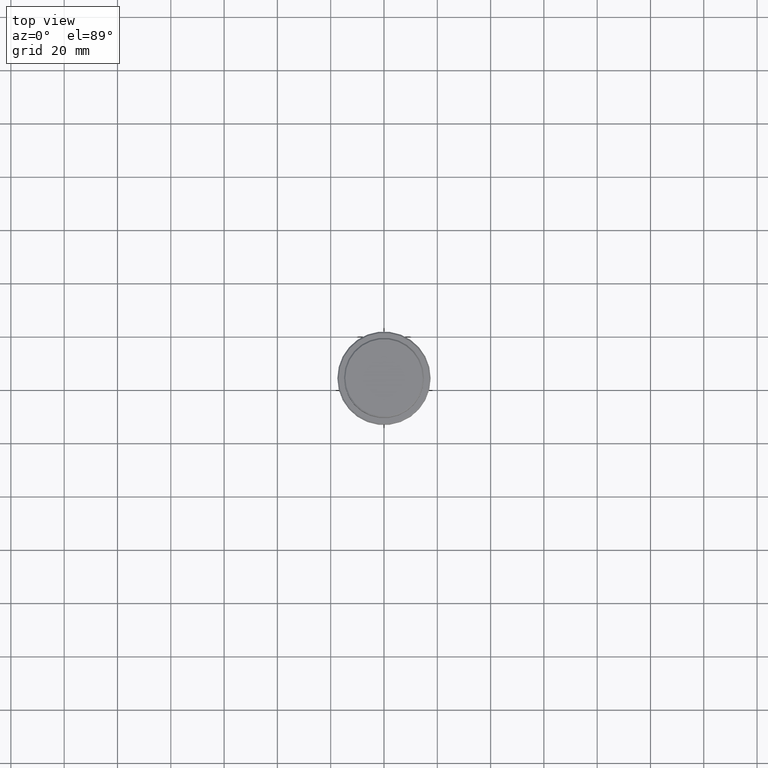
[diagram: clean part render]
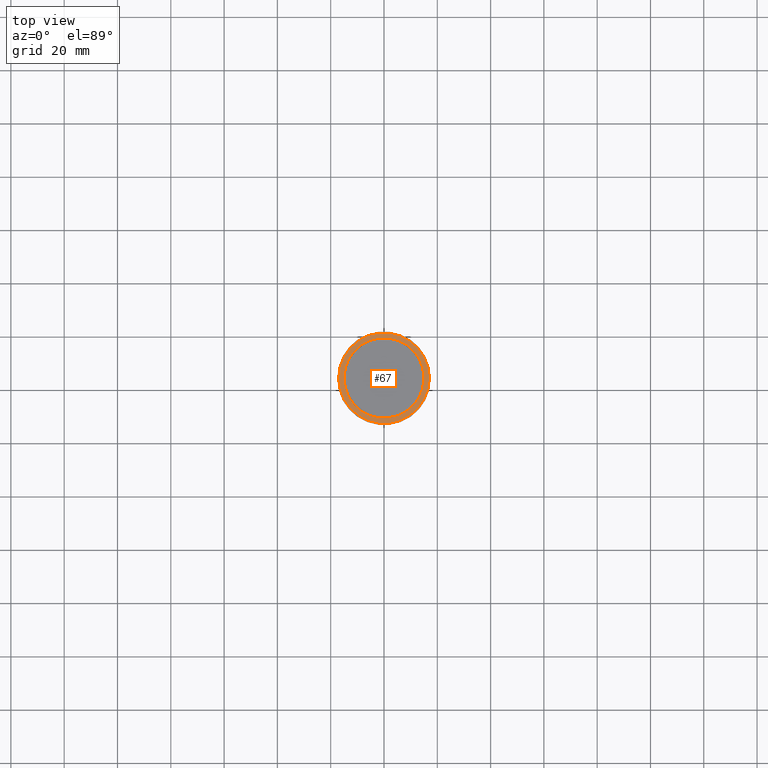
[diagram: same view with one face highlighted and labeled with its STEP entity id]
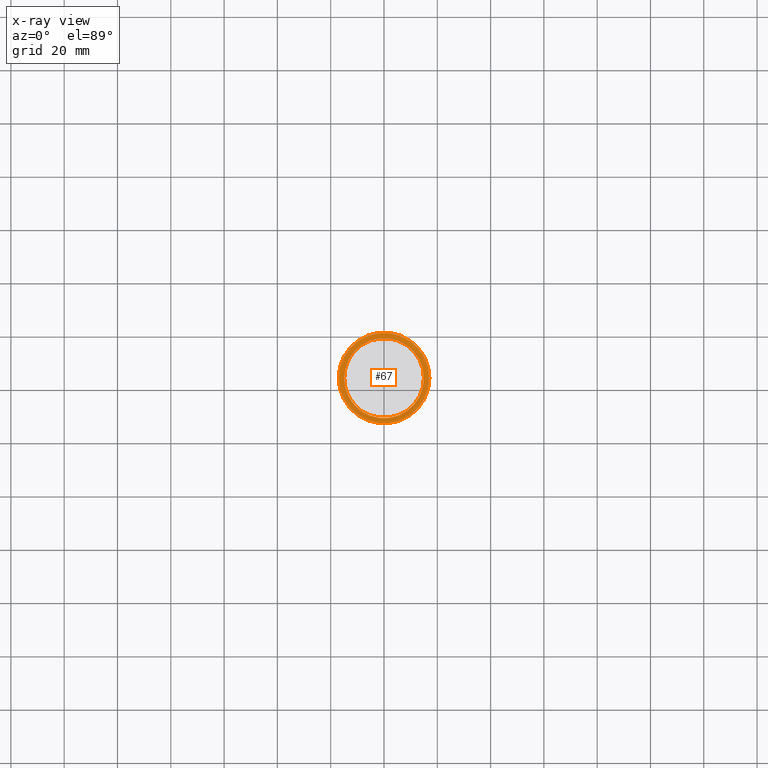
[diagram: x-ray of the same camera — body ghosted, the highlighted face saturated]
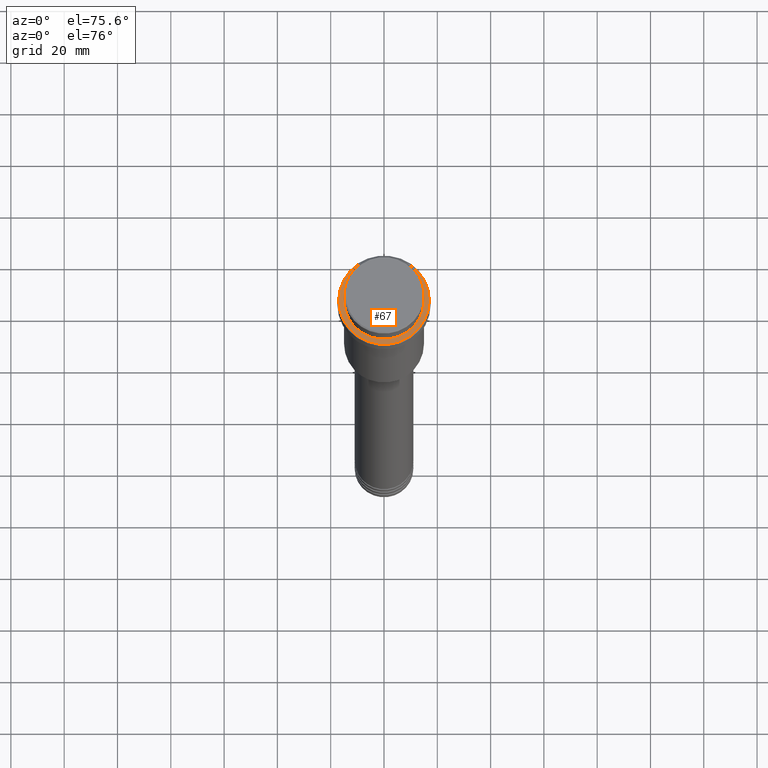
[diagram: same view with one face highlighted and labeled with its STEP entity id]
A machine part, top view. The second image highlights one B-rep face of the part: STEP entity #67.
The next image is the same camera in x-ray: the body ghosted, the highlighted face saturated — about 0% of this face is hidden behind the body in this view.
A second angle (auxiliary view) of the same face is appended — the face is thin or edge-on in the first view.
In plain terms, the highlighted planar face has unit normal (0, -0, 1).
Its self-contained STEP definition (entity closure, byte-faithful):
#18 = CARTESIAN_POINT ( 'NONE',  ( -16.99999999999996092, 0.000000000000000000, -9.000000000000001776 ) ) ;
#59 = AXIS2_PLACEMENT_3D ( 'NONE', #1248, #922, #719 ) ;
#67 = ADVANCED_FACE ( 'NONE', ( #504, #1357 ), #1254, .T. ) ;
#81 = AXIS2_PLACEMENT_3D ( 'NONE', #1269, #409, #1263 ) ;
#88 = CARTESIAN_POINT ( 'NONE',  ( 0.000000000000000000, 0.000000000000000000, -9.000000000000001776 ) ) ;
#126 = EDGE_CURVE ( 'NONE', #615, #812, #562, .T. ) ;
#144 = DIRECTION ( 'NONE',  ( -0.000000000000000000, -0.000000000000000000, 1.000000000000000000 ) ) ;
#251 = ORIENTED_EDGE ( 'NONE', *, *, #126, .T. ) ;
#294 = CARTESIAN_POINT ( 'NONE',  ( 0.000000000000000000, 14.49999999999999467, -9.000000000000001776 ) ) ;
#304 = CARTESIAN_POINT ( 'NONE',  ( 0.000000000000000000, 0.000000000000000000, -9.000000000000001776 ) ) ;
#312 = CIRCLE ( 'NONE', #81, 16.99999999999996092 ) ;
#409 = DIRECTION ( 'NONE',  ( -0.000000000000000000, -0.000000000000000000, 1.000000000000000000 ) ) ;
#419 = DIRECTION ( 'NONE',  ( 1.000000000000000000, 0.000000000000000000, 0.000000000000000000 ) ) ;
#504 = FACE_OUTER_BOUND ( 'NONE', #1058, .T. ) ;
#518 = CARTESIAN_POINT ( 'NONE',  ( 16.99999999999996092, 2.112515728529182095E-15, -9.000000000000001776 ) ) ;
#562 = CIRCLE ( 'NONE', #800, 16.99999999999996092 ) ;
#577 = CARTESIAN_POINT ( 'NONE',  ( 14.99999999999999467, 0.000000000000000000, -9.000000000000001776 ) ) ;
#615 = VERTEX_POINT ( 'NONE', #18 ) ;
#719 = DIRECTION ( 'NONE',  ( 1.000000000000000000, 0.000000000000000000, 0.000000000000000000 ) ) ;
#720 = EDGE_LOOP ( 'NONE', ( #889, #1048 ) ) ;
#769 = EDGE_CURVE ( 'NONE', #1375, #1266, #914, .T. ) ;
#800 = AXIS2_PLACEMENT_3D ( 'NONE', #304, #144, #1032 ) ;
#812 = VERTEX_POINT ( 'NONE', #518 ) ;
#840 = EDGE_CURVE ( 'NONE', #1266, #1375, #1203, .T. ) ;
#841 = DIRECTION ( 'NONE',  ( 1.000000000000000000, 0.000000000000000000, 0.000000000000000000 ) ) ;
#889 = ORIENTED_EDGE ( 'NONE', *, *, #769, .T. ) ;
#914 = CIRCLE ( 'NONE', #59, 14.99999999999999467 ) ;
#922 = DIRECTION ( 'NONE',  ( 0.000000000000000000, 0.000000000000000000, -1.000000000000000000 ) ) ;
#1032 = DIRECTION ( 'NONE',  ( 1.000000000000000000, 0.000000000000000000, 0.000000000000000000 ) ) ;
#1048 = ORIENTED_EDGE ( 'NONE', *, *, #840, .T. ) ;
#1058 = EDGE_LOOP ( 'NONE', ( #251, #1298 ) ) ;
#1060 = DIRECTION ( 'NONE',  ( 0.000000000000000000, 0.000000000000000000, -1.000000000000000000 ) ) ;
#1170 = EDGE_CURVE ( 'NONE', #812, #615, #312, .T. ) ;
#1203 = CIRCLE ( 'NONE', #1313, 14.99999999999999467 ) ;
#1248 = CARTESIAN_POINT ( 'NONE',  ( 0.000000000000000000, 0.000000000000000000, -9.000000000000001776 ) ) ;
#1250 = AXIS2_PLACEMENT_3D ( 'NONE', #294, #1262, #841 ) ;
#1254 = PLANE ( 'NONE',  #1250 ) ;
#1262 = DIRECTION ( 'NONE',  ( 0.000000000000000000, -0.000000000000000000, 1.000000000000000000 ) ) ;
#1263 = DIRECTION ( 'NONE',  ( 1.000000000000000000, 0.000000000000000000, 0.000000000000000000 ) ) ;
#1266 = VERTEX_POINT ( 'NONE', #1396 ) ;
#1269 = CARTESIAN_POINT ( 'NONE',  ( 0.000000000000000000, 0.000000000000000000, -9.000000000000001776 ) ) ;
#1298 = ORIENTED_EDGE ( 'NONE', *, *, #1170, .T. ) ;
#1313 = AXIS2_PLACEMENT_3D ( 'NONE', #88, #1060, #419 ) ;
#1357 = FACE_BOUND ( 'NONE', #720, .T. ) ;
#1375 = VERTEX_POINT ( 'NONE', #577 ) ;
#1396 = CARTESIAN_POINT ( 'NONE',  ( -14.99999999999999467, 1.836970198721029194E-15, -9.000000000000001776 ) ) ;